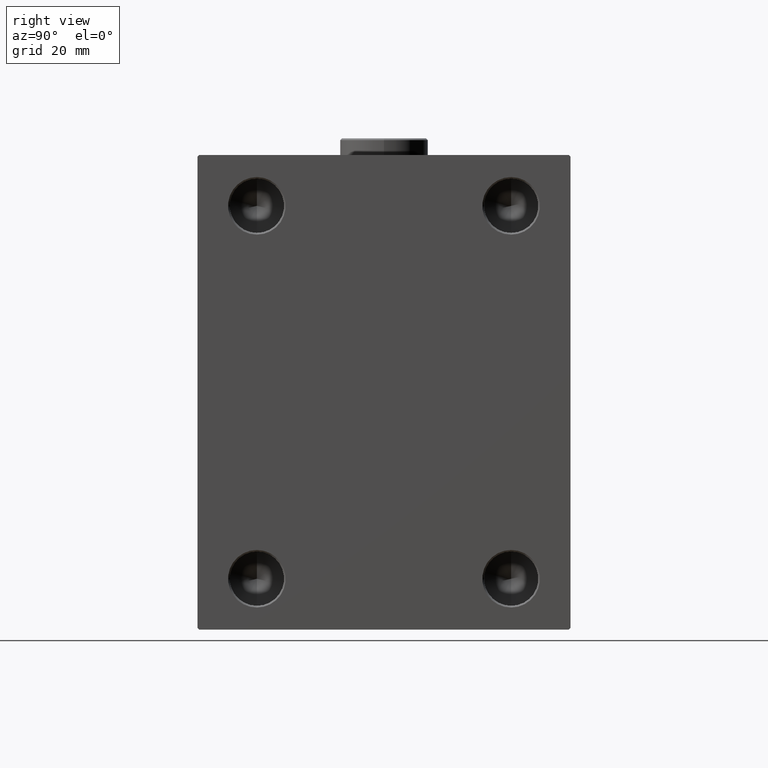
[diagram: clean part render]
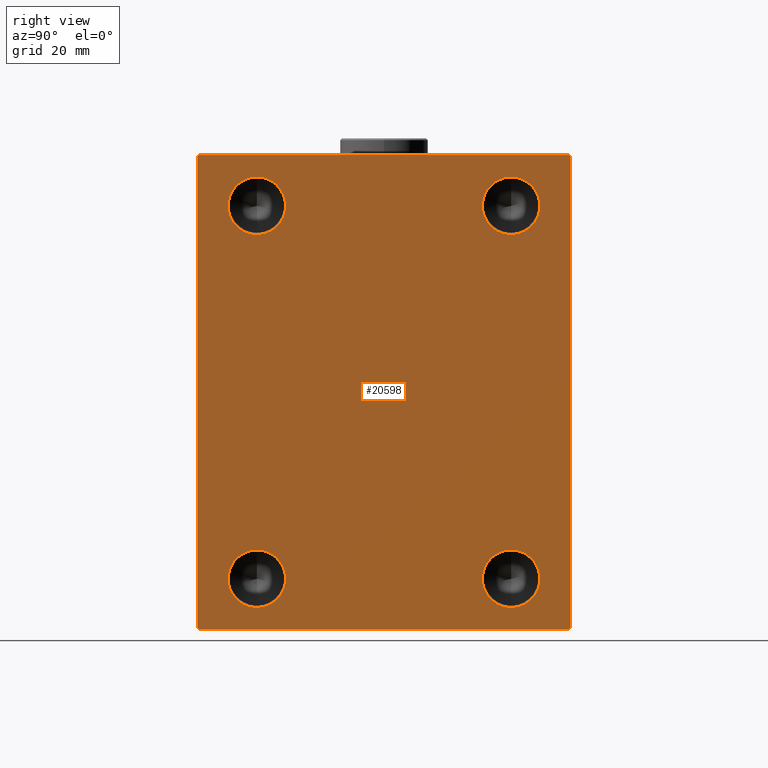
[diagram: same view with one face highlighted and labeled with its STEP entity id]
A machine part, right view. The second image highlights one B-rep face of the part: STEP entity #20598.
In plain terms, the highlighted planar face has unit normal (1, 0, 0).
Its self-contained STEP definition (entity closure, byte-faithful):
#610 = ORIENTED_EDGE ( 'NONE', *, *, #20206, .T. ) ;
#1159 = VERTEX_POINT ( 'NONE', #19553 ) ;
#1309 = LINE ( 'NONE', #7976, #9663 ) ;
#1703 = AXIS2_PLACEMENT_3D ( 'NONE', #1720, #5412, #2171 ) ;
#1720 = CARTESIAN_POINT ( 'NONE',  ( 103.0000000000000000, -37.49999999999999289, 55.00000000000000711 ) ) ;
#1819 = ORIENTED_EDGE ( 'NONE', *, *, #14591, .T. ) ;
#1885 = EDGE_CURVE ( 'NONE', #38221, #27513, #33679, .T. ) ;
#2051 = CARTESIAN_POINT ( 'NONE',  ( 103.0000000000000000, -37.49999999999999289, -54.99999999999999289 ) ) ;
#2171 = DIRECTION ( 'NONE',  ( 0.000000000000000000, 0.000000000000000000, -1.000000000000000000 ) ) ;
#2479 = DIRECTION ( 'NONE',  ( 0.000000000000000000, 0.000000000000000000, -1.000000000000000000 ) ) ;
#2614 = EDGE_CURVE ( 'NONE', #27519, #17168, #15365, .T. ) ;
#3012 = CARTESIAN_POINT ( 'NONE',  ( 103.0000000000000000, 0.000000000000000000, 0.000000000000000000 ) ) ;
#3017 = DIRECTION ( 'NONE',  ( 0.000000000000000000, -0.7071067811865524577, -0.7071067811865426878 ) ) ;
#3067 = CIRCLE ( 'NONE', #42022, 8.500000000000007105 ) ;
#3178 = LINE ( 'NONE', #38602, #22922 ) ;
#3220 = CIRCLE ( 'NONE', #41411, 8.500000000000007105 ) ;
#3797 = VECTOR ( 'NONE', #28190, 999.9999999999998863 ) ;
#5147 = ORIENTED_EDGE ( 'NONE', *, *, #26718, .T. ) ;
#5165 = EDGE_CURVE ( 'NONE', #28989, #45479, #30175, .T. ) ;
#5412 = DIRECTION ( 'NONE',  ( 1.000000000000000000, -0.000000000000000000, -0.000000000000000000 ) ) ;
#5538 = EDGE_LOOP ( 'NONE', ( #28850, #18357 ) ) ;
#5562 = FACE_BOUND ( 'NONE', #12363, .T. ) ;
#5979 = ORIENTED_EDGE ( 'NONE', *, *, #24237, .F. ) ;
#6475 = DIRECTION ( 'NONE',  ( 1.000000000000000000, 0.000000000000000000, 0.000000000000000000 ) ) ;
#6844 = LINE ( 'NONE', #31903, #25384 ) ;
#7264 = DIRECTION ( 'NONE',  ( 0.000000000000000000, 0.000000000000000000, -1.000000000000000000 ) ) ;
#7285 = EDGE_LOOP ( 'NONE', ( #32081, #32231, #17650, #610, #44805, #1819, #5147, #37441 ) ) ;
#7397 = CARTESIAN_POINT ( 'NONE',  ( 103.0000000000000000, 54.49999999999999289, 70.00000000000001421 ) ) ;
#7966 = AXIS2_PLACEMENT_3D ( 'NONE', #16248, #45393, #44321 ) ;
#7976 = CARTESIAN_POINT ( 'NONE',  ( 103.0000000000000000, 55.00000000000000711, -69.99999999999998579 ) ) ;
#8385 = LINE ( 'NONE', #23083, #10988 ) ;
#8395 = DIRECTION ( 'NONE',  ( 0.000000000000000000, 0.000000000000000000, -1.000000000000000000 ) ) ;
#8921 = DIRECTION ( 'NONE',  ( 1.000000000000000000, -0.000000000000000000, -0.000000000000000000 ) ) ;
#9515 = VERTEX_POINT ( 'NONE', #19530 ) ;
#9663 = VECTOR ( 'NONE', #36053, 1000.000000000000000 ) ;
#10988 = VECTOR ( 'NONE', #43136, 1000.000000000000000 ) ;
#11411 = EDGE_LOOP ( 'NONE', ( #39641, #26811 ) ) ;
#11838 = AXIS2_PLACEMENT_3D ( 'NONE', #14385, #24518, #7264 ) ;
#12142 = EDGE_CURVE ( 'NONE', #17168, #28989, #19998, .T. ) ;
#12318 = CARTESIAN_POINT ( 'NONE',  ( 103.0000000000000000, 37.50000000000000000, -46.49999999999998579 ) ) ;
#12363 = EDGE_LOOP ( 'NONE', ( #45377, #5979 ) ) ;
#12393 = EDGE_CURVE ( 'NONE', #23913, #1159, #14033, .T. ) ;
#13587 = PLANE ( 'NONE',  #13892 ) ;
#13593 = CARTESIAN_POINT ( 'NONE',  ( 103.0000000000000000, -62.24999999999963762, 62.25000000000049738 ) ) ;
#13892 = AXIS2_PLACEMENT_3D ( 'NONE', #3012, #6475, #44657 ) ;
#14001 = VECTOR ( 'NONE', #34490, 1000.000000000000000 ) ;
#14033 = CIRCLE ( 'NONE', #27259, 8.500000000000007105 ) ;
#14184 = CIRCLE ( 'NONE', #1703, 8.500000000000007105 ) ;
#14385 = CARTESIAN_POINT ( 'NONE',  ( 103.0000000000000000, 37.50000000000000000, -54.99999999999999289 ) ) ;
#14591 = EDGE_CURVE ( 'NONE', #43536, #27273, #31869, .T. ) ;
#15156 = CARTESIAN_POINT ( 'NONE',  ( 103.0000000000000000, -37.49999999999999289, -63.50000000000000000 ) ) ;
#15338 = VERTEX_POINT ( 'NONE', #17740 ) ;
#15365 = LINE ( 'NONE', #39745, #21206 ) ;
#15531 = EDGE_CURVE ( 'NONE', #17496, #41798, #3067, .T. ) ;
#16248 = CARTESIAN_POINT ( 'NONE',  ( 103.0000000000000000, 37.50000000000000000, -54.99999999999999289 ) ) ;
#16591 = FACE_BOUND ( 'NONE', #43890, .T. ) ;
#17168 = VERTEX_POINT ( 'NONE', #7397 ) ;
#17496 = VERTEX_POINT ( 'NONE', #15156 ) ;
#17650 = ORIENTED_EDGE ( 'NONE', *, *, #41709, .T. ) ;
#17740 = CARTESIAN_POINT ( 'NONE',  ( 103.0000000000000000, -37.49999999999999289, 63.50000000000001421 ) ) ;
#18357 = ORIENTED_EDGE ( 'NONE', *, *, #15531, .F. ) ;
#19457 = CARTESIAN_POINT ( 'NONE',  ( 103.0000000000000000, 54.50000000000004263, -69.99999999999998579 ) ) ;
#19530 = CARTESIAN_POINT ( 'NONE',  ( 103.0000000000000000, -54.49999999999997158, -70.00000000000000000 ) ) ;
#19553 = CARTESIAN_POINT ( 'NONE',  ( 103.0000000000000000, 37.50000000000000000, 46.50000000000000000 ) ) ;
#19816 = FACE_OUTER_BOUND ( 'NONE', #7285, .T. ) ;
#19998 = LINE ( 'NONE', #38159, #14001 ) ;
#20206 = EDGE_CURVE ( 'NONE', #31649, #9515, #8385, .T. ) ;
#20233 = ORIENTED_EDGE ( 'NONE', *, *, #34968, .F. ) ;
#20598 = ADVANCED_FACE ( 'NONE', ( #5562, #16591, #37525, #30624, #19816 ), #13587, .T. ) ;
#21206 = VECTOR ( 'NONE', #29396, 1000.000000000000000 ) ;
#22922 = VECTOR ( 'NONE', #41592, 1000.000000000000000 ) ;
#23083 = CARTESIAN_POINT ( 'NONE',  ( 103.0000000000000000, -62.24999999999847233, -62.25000000000193268 ) ) ;
#23158 = DIRECTION ( 'NONE',  ( 0.000000000000000000, 0.000000000000000000, -1.000000000000000000 ) ) ;
#23179 = CARTESIAN_POINT ( 'NONE',  ( 103.0000000000000000, 37.50000000000000000, 55.00000000000000711 ) ) ;
#23913 = VERTEX_POINT ( 'NONE', #36598 ) ;
#24237 = EDGE_CURVE ( 'NONE', #1159, #23913, #26496, .T. ) ;
#24243 = DIRECTION ( 'NONE',  ( 1.000000000000000000, -0.000000000000000000, -0.000000000000000000 ) ) ;
#24306 = CIRCLE ( 'NONE', #44897, 8.500000000000007105 ) ;
#24518 = DIRECTION ( 'NONE',  ( 1.000000000000000000, -0.000000000000000000, -0.000000000000000000 ) ) ;
#25384 = VECTOR ( 'NONE', #45252, 1000.000000000000000 ) ;
#25610 = CARTESIAN_POINT ( 'NONE',  ( 103.0000000000000000, -37.49999999999999289, -46.49999999999998579 ) ) ;
#25750 = CARTESIAN_POINT ( 'NONE',  ( 103.0000000000000000, 55.00000000000000711, -69.49999999999998579 ) ) ;
#26312 = VECTOR ( 'NONE', #3017, 1000.000000000000000 ) ;
#26496 = CIRCLE ( 'NONE', #33836, 8.500000000000007105 ) ;
#26551 = DIRECTION ( 'NONE',  ( 1.000000000000000000, -0.000000000000000000, -0.000000000000000000 ) ) ;
#26669 = DIRECTION ( 'NONE',  ( 1.000000000000000000, -0.000000000000000000, -0.000000000000000000 ) ) ;
#26718 = EDGE_CURVE ( 'NONE', #27273, #27519, #1309, .T. ) ;
#26811 = ORIENTED_EDGE ( 'NONE', *, *, #28762, .F. ) ;
#26841 = CARTESIAN_POINT ( 'NONE',  ( 103.0000000000000000, 37.50000000000000000, 55.00000000000000711 ) ) ;
#27259 = AXIS2_PLACEMENT_3D ( 'NONE', #26841, #24243, #23158 ) ;
#27273 = VERTEX_POINT ( 'NONE', #25750 ) ;
#27457 = EDGE_CURVE ( 'NONE', #9515, #43536, #3178, .T. ) ;
#27513 = VERTEX_POINT ( 'NONE', #32152 ) ;
#27519 = VERTEX_POINT ( 'NONE', #43641 ) ;
#28190 = DIRECTION ( 'NONE',  ( -0.000000000000000000, 0.7071067811865230368, 0.7071067811865721087 ) ) ;
#28697 = CARTESIAN_POINT ( 'NONE',  ( 103.0000000000000000, -55.00000000000000000, 69.50000000000002842 ) ) ;
#28762 = EDGE_CURVE ( 'NONE', #27513, #38221, #42711, .T. ) ;
#28850 = ORIENTED_EDGE ( 'NONE', *, *, #29557, .F. ) ;
#28989 = VERTEX_POINT ( 'NONE', #44835 ) ;
#29396 = DIRECTION ( 'NONE',  ( -0.000000000000000000, -0.7071067811865671127, 0.7071067811865279218 ) ) ;
#29554 = CARTESIAN_POINT ( 'NONE',  ( 103.0000000000000000, -55.00000000000000000, -69.50000000000000000 ) ) ;
#29557 = EDGE_CURVE ( 'NONE', #41798, #17496, #24306, .T. ) ;
#30175 = LINE ( 'NONE', #13593, #26312 ) ;
#30389 = CARTESIAN_POINT ( 'NONE',  ( 103.0000000000000000, -37.49999999999999289, 46.50000000000000000 ) ) ;
#30624 = FACE_BOUND ( 'NONE', #11411, .T. ) ;
#31639 = CARTESIAN_POINT ( 'NONE',  ( 103.0000000000000000, 62.25000000000191136, -62.24999999999759126 ) ) ;
#31649 = VERTEX_POINT ( 'NONE', #29554 ) ;
#31869 = LINE ( 'NONE', #31639, #3797 ) ;
#31903 = CARTESIAN_POINT ( 'NONE',  ( 103.0000000000000000, -55.00000000000000000, 70.00000000000000000 ) ) ;
#32081 = ORIENTED_EDGE ( 'NONE', *, *, #12142, .T. ) ;
#32152 = CARTESIAN_POINT ( 'NONE',  ( 103.0000000000000000, 37.50000000000000000, -63.50000000000000000 ) ) ;
#32231 = ORIENTED_EDGE ( 'NONE', *, *, #5165, .T. ) ;
#33679 = CIRCLE ( 'NONE', #7966, 8.500000000000007105 ) ;
#33836 = AXIS2_PLACEMENT_3D ( 'NONE', #23179, #8921, #2479 ) ;
#34490 = DIRECTION ( 'NONE',  ( 0.000000000000000000, -1.000000000000000000, -1.261617073437677999E-16 ) ) ;
#34968 = EDGE_CURVE ( 'NONE', #15338, #41457, #14184, .T. ) ;
#35064 = DIRECTION ( 'NONE',  ( 1.000000000000000000, -0.000000000000000000, -0.000000000000000000 ) ) ;
#36053 = DIRECTION ( 'NONE',  ( 0.000000000000000000, -9.912705577010325549E-17, 1.000000000000000000 ) ) ;
#36470 = CARTESIAN_POINT ( 'NONE',  ( 103.0000000000000000, -37.49999999999999289, -54.99999999999999289 ) ) ;
#36598 = CARTESIAN_POINT ( 'NONE',  ( 103.0000000000000000, 37.50000000000000000, 63.50000000000001421 ) ) ;
#36685 = EDGE_CURVE ( 'NONE', #41457, #15338, #3220, .T. ) ;
#37441 = ORIENTED_EDGE ( 'NONE', *, *, #2614, .T. ) ;
#37525 = FACE_BOUND ( 'NONE', #5538, .T. ) ;
#38159 = CARTESIAN_POINT ( 'NONE',  ( 103.0000000000000000, 54.99999999999999289, 70.00000000000001421 ) ) ;
#38221 = VERTEX_POINT ( 'NONE', #12318 ) ;
#38602 = CARTESIAN_POINT ( 'NONE',  ( 103.0000000000000000, -55.00000000000000000, -70.00000000000000000 ) ) ;
#39641 = ORIENTED_EDGE ( 'NONE', *, *, #1885, .F. ) ;
#39745 = CARTESIAN_POINT ( 'NONE',  ( 103.0000000000000000, 62.24999999999849365, 62.25000000000193978 ) ) ;
#41411 = AXIS2_PLACEMENT_3D ( 'NONE', #41962, #35064, #45406 ) ;
#41457 = VERTEX_POINT ( 'NONE', #30389 ) ;
#41592 = DIRECTION ( 'NONE',  ( 0.000000000000000000, 1.000000000000000000, 1.261617073437677752E-16 ) ) ;
#41604 = ORIENTED_EDGE ( 'NONE', *, *, #36685, .F. ) ;
#41609 = DIRECTION ( 'NONE',  ( 0.000000000000000000, 0.000000000000000000, -1.000000000000000000 ) ) ;
#41709 = EDGE_CURVE ( 'NONE', #45479, #31649, #6844, .T. ) ;
#41798 = VERTEX_POINT ( 'NONE', #25610 ) ;
#41962 = CARTESIAN_POINT ( 'NONE',  ( 103.0000000000000000, -37.49999999999999289, 55.00000000000000711 ) ) ;
#42022 = AXIS2_PLACEMENT_3D ( 'NONE', #2051, #26669, #41609 ) ;
#42711 = CIRCLE ( 'NONE', #11838, 8.500000000000007105 ) ;
#43136 = DIRECTION ( 'NONE',  ( -0.000000000000000000, 0.7071067811865672237, -0.7071067811865279218 ) ) ;
#43536 = VERTEX_POINT ( 'NONE', #19457 ) ;
#43641 = CARTESIAN_POINT ( 'NONE',  ( 103.0000000000000000, 54.99999999999999289, 69.50000000000004263 ) ) ;
#43890 = EDGE_LOOP ( 'NONE', ( #20233, #41604 ) ) ;
#44321 = DIRECTION ( 'NONE',  ( 0.000000000000000000, 0.000000000000000000, -1.000000000000000000 ) ) ;
#44657 = DIRECTION ( 'NONE',  ( 0.000000000000000000, 0.000000000000000000, -1.000000000000000000 ) ) ;
#44805 = ORIENTED_EDGE ( 'NONE', *, *, #27457, .T. ) ;
#44835 = CARTESIAN_POINT ( 'NONE',  ( 103.0000000000000000, -54.50000000000002132, 70.00000000000000000 ) ) ;
#44897 = AXIS2_PLACEMENT_3D ( 'NONE', #36470, #26551, #8395 ) ;
#45252 = DIRECTION ( 'NONE',  ( 0.000000000000000000, 0.000000000000000000, -1.000000000000000000 ) ) ;
#45377 = ORIENTED_EDGE ( 'NONE', *, *, #12393, .F. ) ;
#45393 = DIRECTION ( 'NONE',  ( 1.000000000000000000, -0.000000000000000000, -0.000000000000000000 ) ) ;
#45406 = DIRECTION ( 'NONE',  ( 0.000000000000000000, 0.000000000000000000, -1.000000000000000000 ) ) ;
#45479 = VERTEX_POINT ( 'NONE', #28697 ) ;